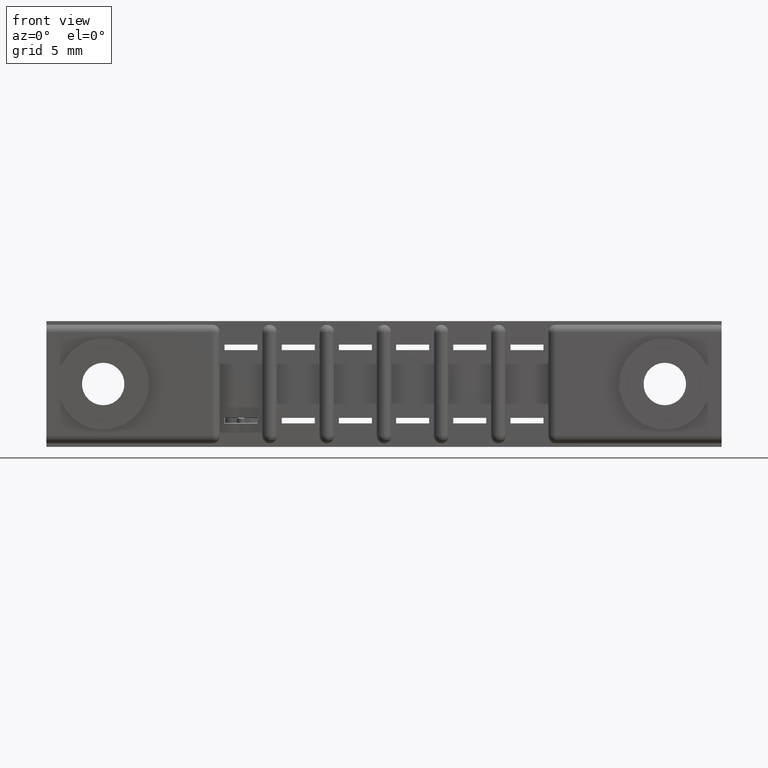
[diagram: clean part render]
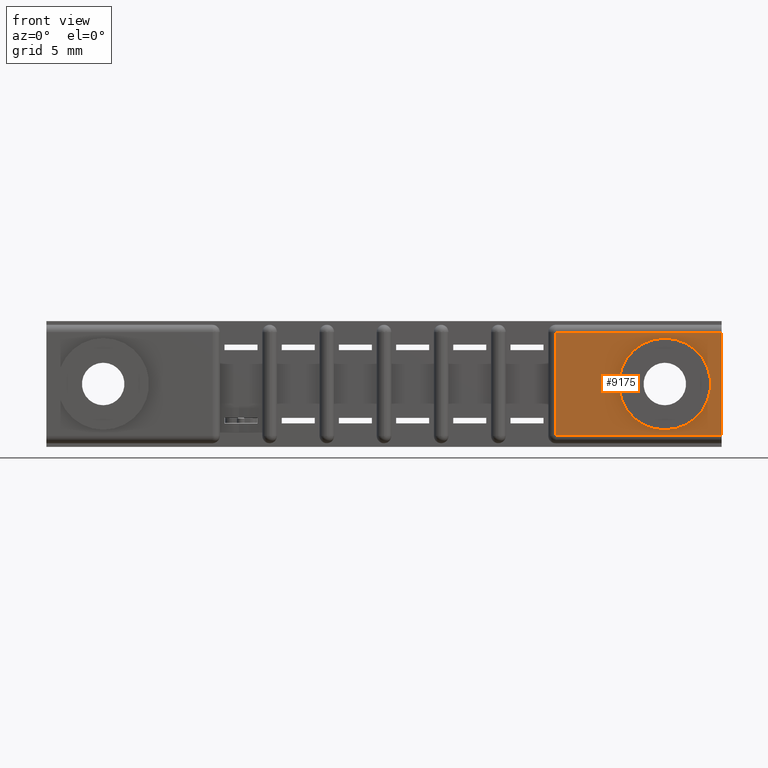
[diagram: same view with one face highlighted and labeled with its STEP entity id]
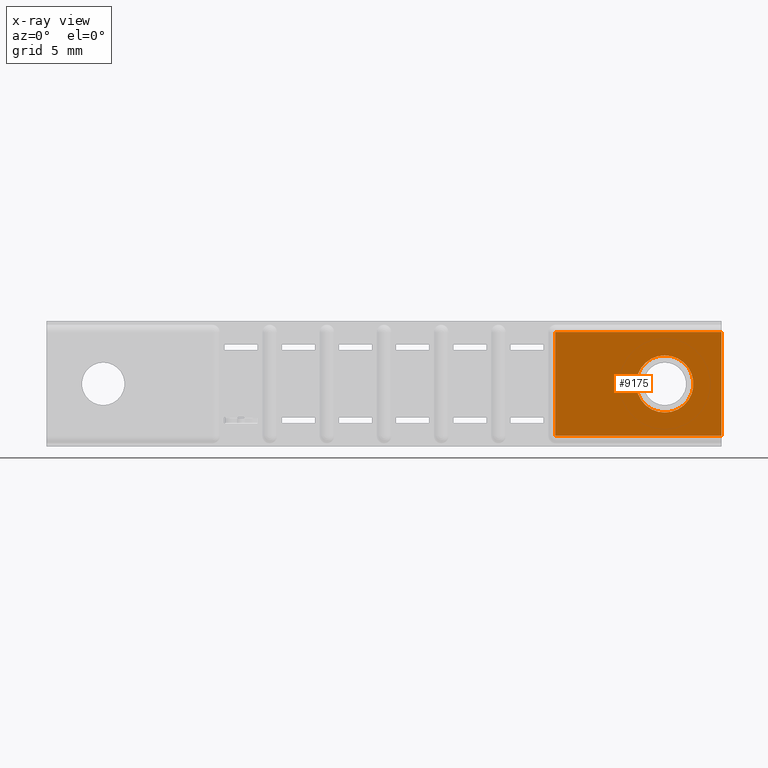
[diagram: x-ray of the same camera — body ghosted, the highlighted face saturated]
A machine part, front view. The second image highlights one B-rep face of the part: STEP entity #9175.
The next image is the same camera in x-ray: the body ghosted, the highlighted face saturated — about 0% of this face is hidden behind the body in this view.
In plain terms, the highlighted planar face has unit normal (0, -1, 0).
Its self-contained STEP definition (entity closure, byte-faithful):
#449 = CARTESIAN_POINT ( 'NONE',  ( 1.686999999999999800, 0.0000000000000000000, -0.09349999999999995800 ) ) ;
#531 = CARTESIAN_POINT ( 'NONE',  ( 1.388999999999999100, 0.0000000000000000000, -0.03000000000000022800 ) ) ;
#805 = AXIS2_PLACEMENT_3D ( 'NONE', #3563, #9139, #4379 ) ;
#1117 = FACE_OUTER_BOUND ( 'NONE', #2594, .T. ) ;
#1741 = ORIENTED_EDGE ( 'NONE', *, *, #3698, .T. ) ;
#1750 = VERTEX_POINT ( 'NONE', #6945 ) ;
#1760 = VECTOR ( 'NONE', #3375, 39.37007874015748100 ) ;
#2008 = CIRCLE ( 'NONE', #8478, 0.07800000000000008300 ) ;
#2119 = CARTESIAN_POINT ( 'NONE',  ( 1.389000000000000500, 0.0000000000000000000, -0.3130000000000001700 ) ) ;
#2594 = EDGE_LOOP ( 'NONE', ( #5856, #1741, #4194, #6597 ) ) ;
#2736 = EDGE_CURVE ( 'NONE', #4966, #5203, #4624, .T. ) ;
#2822 = EDGE_CURVE ( 'NONE', #6156, #7284, #6024, .T. ) ;
#3009 = VECTOR ( 'NONE', #9527, 39.37007874015748100 ) ;
#3375 = DIRECTION ( 'NONE',  ( -1.000000000000000000, 0.0000000000000000000, 0.0000000000000000000 ) ) ;
#3527 = AXIS2_PLACEMENT_3D ( 'NONE', #10147, #10155, #10183 ) ;
#3555 = FACE_BOUND ( 'NONE', #8321, .T. ) ;
#3563 = CARTESIAN_POINT ( 'NONE',  ( 0.0000000000000000000, 0.0000000000000000000, -0.3430000000000000300 ) ) ;
#3698 = EDGE_CURVE ( 'NONE', #5203, #8275, #10232, .T. ) ;
#3906 = EDGE_CURVE ( 'NONE', #1750, #4966, #3947, .T. ) ;
#3947 = LINE ( 'NONE', #4089, #1760 ) ;
#4007 = CARTESIAN_POINT ( 'NONE',  ( 1.842000000000000100, 0.0000000000000000000, -0.3130000000000002800 ) ) ;
#4086 = VECTOR ( 'NONE', #8513, 39.37007874015748100 ) ;
#4089 = CARTESIAN_POINT ( 'NONE',  ( 0.0000000000000000000, 0.0000000000000000000, -0.03000000000000022800 ) ) ;
#4139 = CARTESIAN_POINT ( 'NONE',  ( 1.686999999999999800, 0.0000000000000000000, -0.1715000000000000400 ) ) ;
#4194 = ORIENTED_EDGE ( 'NONE', *, *, #8016, .F. ) ;
#4379 = DIRECTION ( 'NONE',  ( 0.0000000000000000000, -0.0000000000000000000, -1.000000000000000000 ) ) ;
#4624 = LINE ( 'NONE', #8089, #8834 ) ;
#4966 = VERTEX_POINT ( 'NONE', #531 ) ;
#4982 = DIRECTION ( 'NONE',  ( 0.0000000000000000000, 0.0000000000000000000, 1.000000000000000000 ) ) ;
#5203 = VERTEX_POINT ( 'NONE', #2119 ) ;
#5856 = ORIENTED_EDGE ( 'NONE', *, *, #2736, .T. ) ;
#6024 = CIRCLE ( 'NONE', #3527, 0.07800000000000008300 ) ;
#6156 = VERTEX_POINT ( 'NONE', #9899 ) ;
#6346 = CARTESIAN_POINT ( 'NONE',  ( 1.842000000000000100, 0.0000000000000000000, 0.0000000000000000000 ) ) ;
#6597 = ORIENTED_EDGE ( 'NONE', *, *, #3906, .T. ) ;
#6945 = CARTESIAN_POINT ( 'NONE',  ( 1.842000000000000100, 0.0000000000000000000, -0.03000000000000022800 ) ) ;
#7094 = LINE ( 'NONE', #6346, #3009 ) ;
#7226 = ORIENTED_EDGE ( 'NONE', *, *, #2822, .F. ) ;
#7284 = VERTEX_POINT ( 'NONE', #449 ) ;
#7480 = ORIENTED_EDGE ( 'NONE', *, *, #8156, .F. ) ;
#7587 = PLANE ( 'NONE',  #805 ) ;
#7862 = DIRECTION ( 'NONE',  ( 1.592914282019976900E-015, -0.0000000000000000000, -1.000000000000000000 ) ) ;
#8016 = EDGE_CURVE ( 'NONE', #1750, #8275, #7094, .T. ) ;
#8089 = CARTESIAN_POINT ( 'NONE',  ( 1.389000000000000500, 0.0000000000000000000, -0.3130000000000001700 ) ) ;
#8156 = EDGE_CURVE ( 'NONE', #7284, #6156, #2008, .T. ) ;
#8275 = VERTEX_POINT ( 'NONE', #4007 ) ;
#8321 = EDGE_LOOP ( 'NONE', ( #7226, #7480 ) ) ;
#8478 = AXIS2_PLACEMENT_3D ( 'NONE', #4139, #9753, #4982 ) ;
#8513 = DIRECTION ( 'NONE',  ( 1.000000000000000000, -0.0000000000000000000, -0.0000000000000000000 ) ) ;
#8627 = CARTESIAN_POINT ( 'NONE',  ( 1.841999999999999400, 0.0000000000000000000, -0.3130000000000002800 ) ) ;
#8834 = VECTOR ( 'NONE', #7862, 39.37007874015748100 ) ;
#9139 = DIRECTION ( 'NONE',  ( 0.0000000000000000000, -1.000000000000000000, 0.0000000000000000000 ) ) ;
#9175 = ADVANCED_FACE ( 'NONE', ( #3555, #1117 ), #7587, .T. ) ;
#9527 = DIRECTION ( 'NONE',  ( 0.0000000000000000000, 0.0000000000000000000, -1.000000000000000000 ) ) ;
#9753 = DIRECTION ( 'NONE',  ( 0.0000000000000000000, -1.000000000000000000, 0.0000000000000000000 ) ) ;
#9899 = CARTESIAN_POINT ( 'NONE',  ( 1.686999999999999800, 0.0000000000000000000, -0.2495000000000001100 ) ) ;
#10147 = CARTESIAN_POINT ( 'NONE',  ( 1.686999999999999800, 0.0000000000000000000, -0.1715000000000000400 ) ) ;
#10155 = DIRECTION ( 'NONE',  ( 0.0000000000000000000, -1.000000000000000000, 0.0000000000000000000 ) ) ;
#10183 = DIRECTION ( 'NONE',  ( 0.0000000000000000000, 0.0000000000000000000, 1.000000000000000000 ) ) ;
#10232 = LINE ( 'NONE', #8627, #4086 ) ;